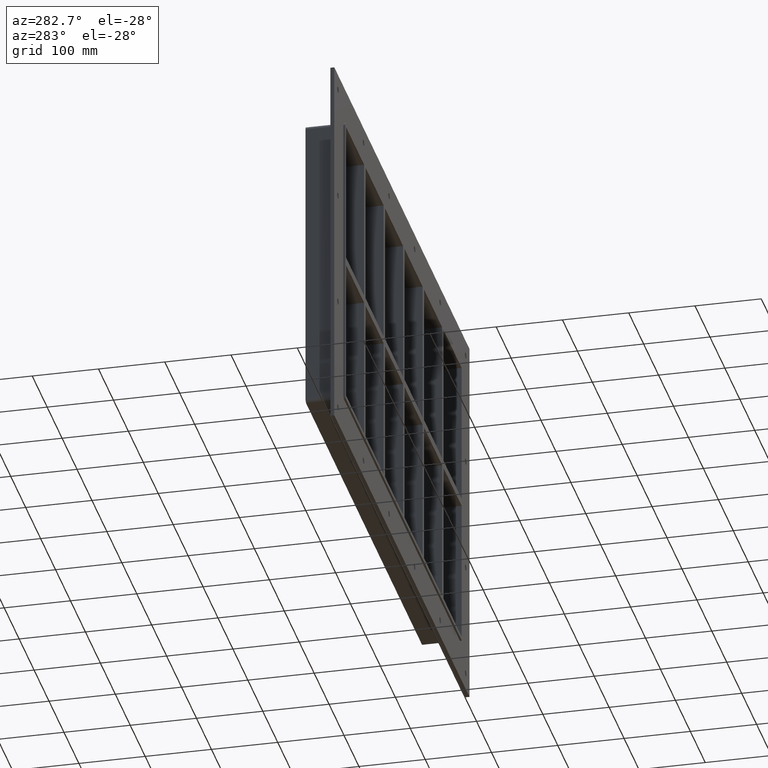
[diagram: clean part render]
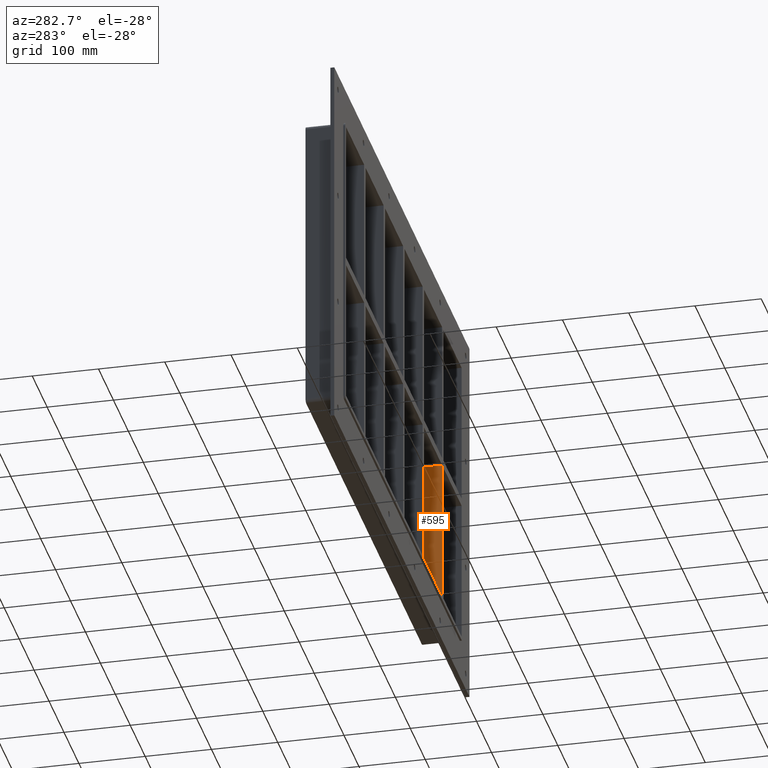
[diagram: same view with one face highlighted and labeled with its STEP entity id]
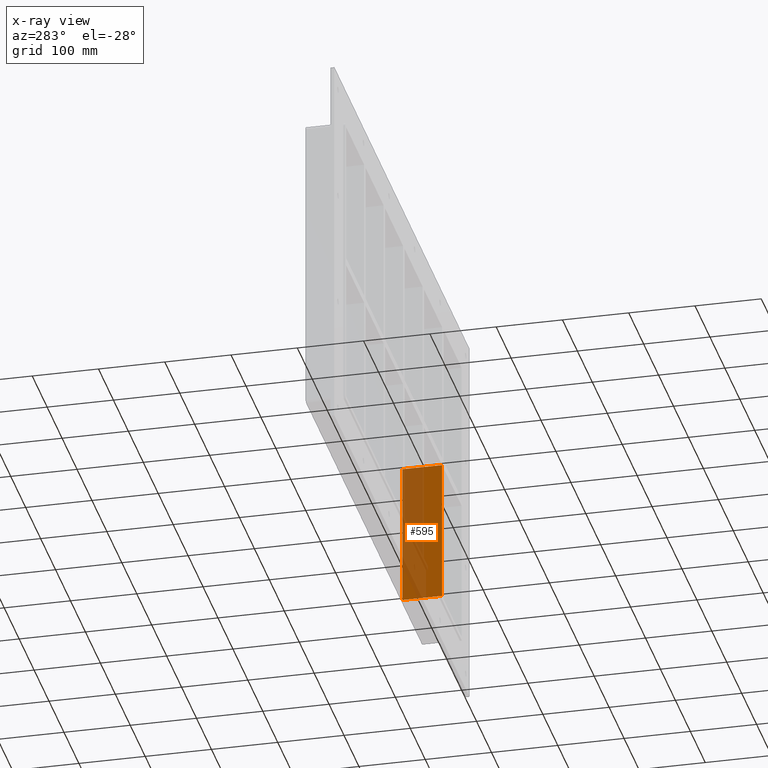
[diagram: x-ray of the same camera — body ghosted, the highlighted face saturated]
A machine part, auxiliary view. The second image highlights one B-rep face of the part: STEP entity #595.
The next image is the same camera in x-ray: the body ghosted, the highlighted face saturated — about 51% of this face is hidden behind the body in this view.
In plain terms, the highlighted planar face has unit normal (-1, 0, 0).
Its self-contained STEP definition (entity closure, byte-faithful):
#556=CARTESIAN_POINT('',(255.99999999999807,-3.0,-224.00000000000006));
#557=DIRECTION('',(-1.0,0.0,0.0));
#558=DIRECTION('',(0.0,0.0,1.0));
#559=AXIS2_PLACEMENT_3D('',#556,#557,#558);
#560=PLANE('',#559);
#561=CARTESIAN_POINT('',(255.99999999999801,57.0,-6.000000000010175));
#562=VERTEX_POINT('',#561);
#563=CARTESIAN_POINT('',(255.99999999999801,-3.0,-6.000000000010175));
#564=VERTEX_POINT('',#563);
#565=CARTESIAN_POINT('',(255.99999999999807,57.0,-6.000000000010193));
#566=DIRECTION('',(0.0,-1.0,0.0));
#567=VECTOR('',#566,60.0);
#568=LINE('',#565,#567);
#569=EDGE_CURVE('',#562,#564,#568,.T.);
#570=ORIENTED_EDGE('',*,*,#569,.F.);
#571=CARTESIAN_POINT('',(255.99999999999807,57.0,-224.00000000000006));
#572=VERTEX_POINT('',#571);
#573=CARTESIAN_POINT('',(255.99999999999807,57.0,-224.00000000000006));
#574=DIRECTION('',(0.0,0.0,1.0));
#575=VECTOR('',#574,217.99999999998988);
#576=LINE('',#573,#575);
#577=EDGE_CURVE('',#572,#562,#576,.T.);
#578=ORIENTED_EDGE('',*,*,#577,.F.);
#579=CARTESIAN_POINT('',(255.99999999999807,-3.0,-224.00000000000006));
#580=VERTEX_POINT('',#579);
#581=CARTESIAN_POINT('',(255.99999999999801,-3.0,-224.00000000000006));
#582=DIRECTION('',(0.0,1.0,0.0));
#583=VECTOR('',#582,60.000000000000007);
#584=LINE('',#581,#583);
#585=EDGE_CURVE('',#580,#572,#584,.T.);
#586=ORIENTED_EDGE('',*,*,#585,.F.);
#587=CARTESIAN_POINT('',(255.99999999999807,-3.0,-224.00000000000006));
#588=DIRECTION('',(0.0,0.0,1.0));
#589=VECTOR('',#588,217.99999999998988);
#590=LINE('',#587,#589);
#591=EDGE_CURVE('',#580,#564,#590,.T.);
#592=ORIENTED_EDGE('',*,*,#591,.T.);
#593=EDGE_LOOP('',(#570,#578,#586,#592));
#594=FACE_OUTER_BOUND('',#593,.T.);
#595=ADVANCED_FACE('',(#594),#560,.T.);